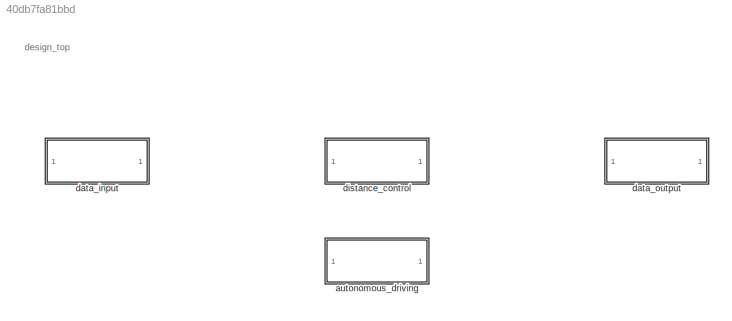
MODEL slx_40db7fa81bbd
KIND model
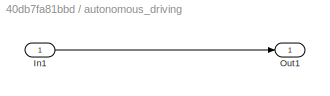
BLOCK [SubSystem] autonomous_driving
  Ports = [1, 1]
  RequestExecContextInheritance = off
BLOCK [Inport] autonomous_driving/In1
  IconDisplay = Port number
BLOCK [Outport] autonomous_driving/Out1
  IconDisplay = Port number
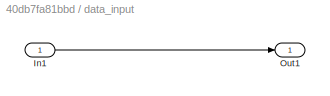
BLOCK [SubSystem] data_input
  Ports = [1, 1]
  RequestExecContextInheritance = off
BLOCK [Inport] data_input/In1
  IconDisplay = Port number
BLOCK [Outport] data_input/Out1
  IconDisplay = Port number
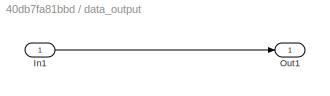
BLOCK [SubSystem] data_output
  Ports = [1, 1]
  RequestExecContextInheritance = off
BLOCK [Inport] data_output/In1
  IconDisplay = Port number
BLOCK [Outport] data_output/Out1
  IconDisplay = Port number
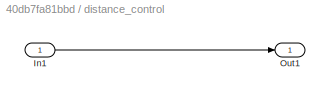
BLOCK [SubSystem] distance_control
  Ports = [1, 1]
  RequestExecContextInheritance = off
BLOCK [Inport] distance_control/In1
  IconDisplay = Port number
BLOCK [Outport] distance_control/Out1
  IconDisplay = Port number
ANNOTATION (root): design_top
LINE autonomous_driving/In1:1 -> autonomous_driving/Out1:1
LINE data_input/In1:1 -> data_input/Out1:1
LINE data_output/In1:1 -> data_output/Out1:1
LINE distance_control/In1:1 -> distance_control/Out1:1
